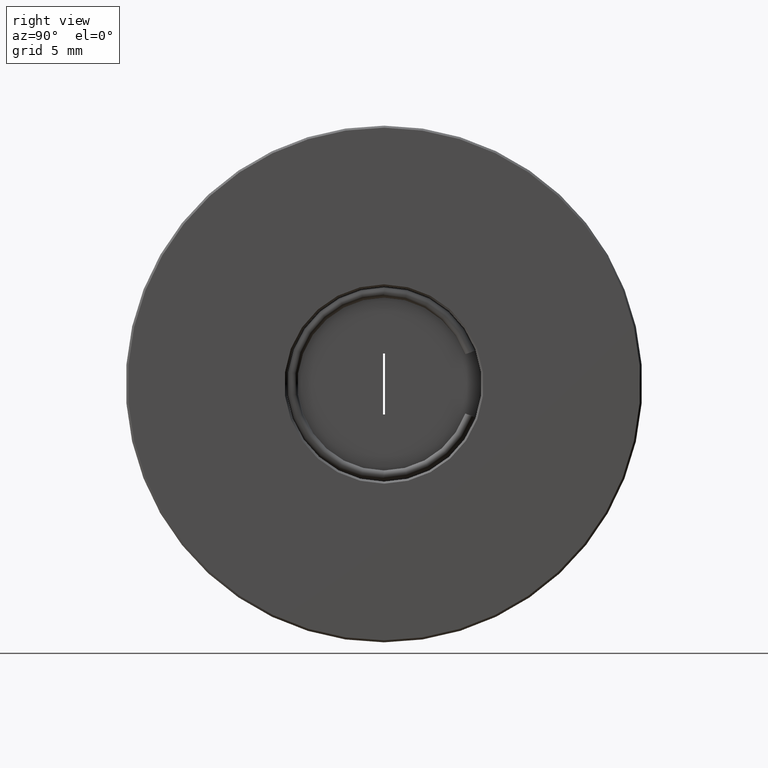
[diagram: clean part render]
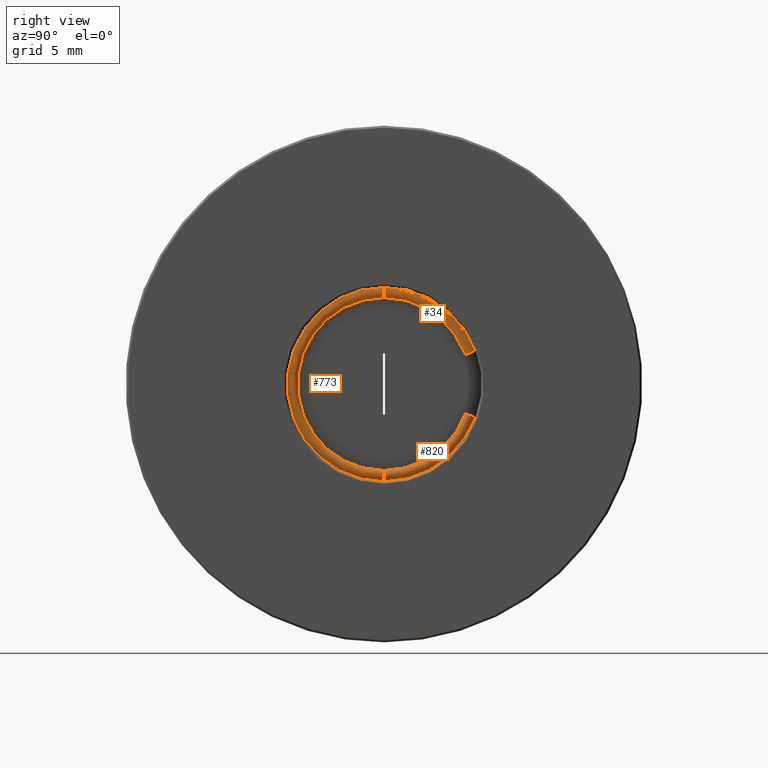
[diagram: same view with one multi-face feature highlighted, each face labeled with its STEP entity id]
A machine part, right view. The highlighted faces form ONE feature: a constant-radius fillet chain: 3 tangent blend faces with common blend radius 0.25 mm. The faces share edges in the B-rep.
Their STEP definitions:
[1] entity #820 (Torus):
#3 = DIRECTION ( 'NONE',  ( 1.000000000000000000, -3.053113317719177725E-15, -1.221245326846538123E-15 ) ) ;
#18 = CARTESIAN_POINT ( 'NONE',  ( -4.034863851253000178, 1.436758840805285820, 21.14999999999999858 ) ) ;
#26 = CIRCLE ( 'NONE', #391, 0.2500000000000002220 ) ;
#30 = DIRECTION ( 'NONE',  ( 1.000000000000000000, -3.469446951953611033E-15, 0.000000000000000000 ) ) ;
#33 = CARTESIAN_POINT ( 'NONE',  ( -4.034863851252994849, 1.436758840788832314, 20.89999999999999858 ) ) ;
#72 = FACE_OUTER_BOUND ( 'NONE', #881, .T. ) ;
#75 = EDGE_CURVE ( 'NONE', #121, #212, #26, .T. ) ;
#107 = DIRECTION ( 'NONE',  ( -3.053113317638805026E-15, -1.000000000000000000, 6.581508406600454517E-11 ) ) ;
#111 = CARTESIAN_POINT ( 'NONE',  ( -4.034863851253006395, 1.436758840772378365, 20.64999999999999858 ) ) ;
#121 = VERTEX_POINT ( 'NONE', #111 ) ;
#134 = AXIS2_PLACEMENT_3D ( 'NONE', #322, #686, #177 ) ;
#177 = DIRECTION ( 'NONE',  ( 3.104242009642707308E-15, 1.000000000000000000, -6.581577388350236595E-11 ) ) ;
#184 = CARTESIAN_POINT ( 'NONE',  ( -4.034863851253018829, 5.665375634520317227, 23.86090935475618835 ) ) ;
#212 = VERTEX_POINT ( 'NONE', #18 ) ;
#220 = VERTEX_POINT ( 'NONE', #299 ) ;
#228 = ORIENTED_EDGE ( 'NONE', *, *, #705, .F. ) ;
#232 = VERTEX_POINT ( 'NONE', #894 ) ;
#266 = DIRECTION ( 'NONE',  ( 3.469446951953611033E-15, -0.9396926207634005435, 0.3420201433875083574 ) ) ;
#299 = CARTESIAN_POINT ( 'NONE',  ( -4.034863851252988631, 5.900298789711156289, 23.77540431890931671 ) ) ;
#322 = CARTESIAN_POINT ( 'NONE',  ( -4.034863851253000178, 1.436758841085000071, 25.39999999999999858 ) ) ;
#361 = ORIENTED_EDGE ( 'NONE', *, *, #926, .T. ) ;
#391 = AXIS2_PLACEMENT_3D ( 'NONE', #33, #107, #30 ) ;
#394 = CIRCLE ( 'NONE', #134, 4.750000000000000000 ) ;
#411 = DIRECTION ( 'NONE',  ( 1.000000000000000000, -3.053113317719177725E-15, -1.221245326846538123E-15 ) ) ;
#413 = CIRCLE ( 'NONE', #536, 0.2500000000000002220 ) ;
#531 = AXIS2_PLACEMENT_3D ( 'NONE', #620, #411, #775 ) ;
#536 = AXIS2_PLACEMENT_3D ( 'NONE', #184, #935, #266 ) ;
#577 = EDGE_CURVE ( 'NONE', #220, #232, #413, .T. ) ;
#586 = ORIENTED_EDGE ( 'NONE', *, *, #75, .F. ) ;
#587 = DIRECTION ( 'NONE',  ( -1.221245327047478942E-15, -6.581508912423552347E-11, -1.000000000000000000 ) ) ;
#620 = CARTESIAN_POINT ( 'NONE',  ( -4.034863851253000178, 1.436758841085000071, 25.39999999999999858 ) ) ;
#626 = TOROIDAL_SURFACE ( 'NONE', #875, 4.500000000000000000, 0.2500000000000000000 ) ;
#655 = CARTESIAN_POINT ( 'NONE',  ( -4.034863851253000178, 1.436758841085000071, 25.39999999999999858 ) ) ;
#686 = DIRECTION ( 'NONE',  ( 1.000000000000000000, -3.053113317719177725E-15, -1.221245326846538123E-15 ) ) ;
#696 = CIRCLE ( 'NONE', #531, 4.250000000000000000 ) ;
#705 = EDGE_CURVE ( 'NONE', #212, #232, #696, .T. ) ;
#775 = DIRECTION ( 'NONE',  ( 3.061276722312012589E-15, 1.000000000000000000, -6.581581684878969820E-11 ) ) ;
#778 = ORIENTED_EDGE ( 'NONE', *, *, #577, .T. ) ;
#820 = ADVANCED_FACE ( 'NONE', ( #72 ), #626, .T. ) ;
#875 = AXIS2_PLACEMENT_3D ( 'NONE', #655, #3, #587 ) ;
#881 = EDGE_LOOP ( 'NONE', ( #586, #361, #778, #228 ) ) ;
#894 = CARTESIAN_POINT ( 'NONE',  ( -4.034863851252989519, 5.430452479329460402, 23.94641439060306709 ) ) ;
#926 = EDGE_CURVE ( 'NONE', #121, #220, #394, .T. ) ;
#935 = DIRECTION ( 'NONE',  ( 2.191821476484100505E-15, -0.3420201433875058039, -0.9396926207634015427 ) ) ;
[2] entity #773 (Torus):
#17 = AXIS2_PLACEMENT_3D ( 'NONE', #207, #730, #649 ) ;
#18 = CARTESIAN_POINT ( 'NONE',  ( -4.034863851253000178, 1.436758840805285820, 21.14999999999999858 ) ) ;
#25 = CARTESIAN_POINT ( 'NONE',  ( -4.034863851253000178, 1.436758841085000071, 25.39999999999999858 ) ) ;
#26 = CIRCLE ( 'NONE', #391, 0.2500000000000002220 ) ;
#30 = DIRECTION ( 'NONE',  ( 1.000000000000000000, -3.469446951953611033E-15, 0.000000000000000000 ) ) ;
#33 = CARTESIAN_POINT ( 'NONE',  ( -4.034863851252994849, 1.436758840788832314, 20.89999999999999858 ) ) ;
#40 = AXIS2_PLACEMENT_3D ( 'NONE', #25, #685, #763 ) ;
#56 = VERTEX_POINT ( 'NONE', #547 ) ;
#75 = EDGE_CURVE ( 'NONE', #121, #212, #26, .T. ) ;
#99 = EDGE_CURVE ( 'NONE', #56, #121, #190, .T. ) ;
#107 = DIRECTION ( 'NONE',  ( -3.053113317638805026E-15, -1.000000000000000000, 6.581508406600454517E-11 ) ) ;
#111 = CARTESIAN_POINT ( 'NONE',  ( -4.034863851253006395, 1.436758840772378365, 20.64999999999999858 ) ) ;
#121 = VERTEX_POINT ( 'NONE', #111 ) ;
#136 = ORIENTED_EDGE ( 'NONE', *, *, #99, .T. ) ;
#148 = FACE_OUTER_BOUND ( 'NONE', #444, .T. ) ;
#188 = DIRECTION ( 'NONE',  ( 3.061276722312012589E-15, 1.000000000000000000, -6.581581684878969820E-11 ) ) ;
#190 = CIRCLE ( 'NONE', #40, 4.750000000000000000 ) ;
#195 = VERTEX_POINT ( 'NONE', #452 ) ;
#200 = ORIENTED_EDGE ( 'NONE', *, *, #438, .F. ) ;
#207 = CARTESIAN_POINT ( 'NONE',  ( -4.034863851253000178, 1.436758841085000071, 25.39999999999999858 ) ) ;
#212 = VERTEX_POINT ( 'NONE', #18 ) ;
#337 = DIRECTION ( 'NONE',  ( 3.053113317638805026E-15, 1.000000000000000000, -6.581520653068446578E-11 ) ) ;
#379 = CIRCLE ( 'NONE', #945, 4.250000000000000000 ) ;
#391 = AXIS2_PLACEMENT_3D ( 'NONE', #33, #107, #30 ) ;
#438 = EDGE_CURVE ( 'NONE', #56, #195, #922, .T. ) ;
#444 = EDGE_LOOP ( 'NONE', ( #200, #136, #713, #638 ) ) ;
#452 = CARTESIAN_POINT ( 'NONE',  ( -4.034863851252997513, 1.436758841364714767, 29.64999999999999858 ) ) ;
#483 = DIRECTION ( 'NONE',  ( 1.000000000000000000, -3.053113317719177725E-15, -1.221245326846538123E-15 ) ) ;
#547 = CARTESIAN_POINT ( 'NONE',  ( -4.034863851252993960, 1.436758841397622444, 30.14999999999999858 ) ) ;
#608 = EDGE_CURVE ( 'NONE', #195, #212, #379, .T. ) ;
#629 = AXIS2_PLACEMENT_3D ( 'NONE', #699, #337, #632 ) ;
#632 = DIRECTION ( 'NONE',  ( -1.000000000000000000, 3.469446951953611033E-15, 0.000000000000000000 ) ) ;
#638 = ORIENTED_EDGE ( 'NONE', *, *, #608, .F. ) ;
#649 = DIRECTION ( 'NONE',  ( -1.221245327047478942E-15, -6.581508912423552347E-11, -1.000000000000000000 ) ) ;
#671 = TOROIDAL_SURFACE ( 'NONE', #17, 4.500000000000000000, 0.2500000000000000000 ) ;
#685 = DIRECTION ( 'NONE',  ( 1.000000000000000000, -3.053113317719177725E-15, -1.221245326846538123E-15 ) ) ;
#699 = CARTESIAN_POINT ( 'NONE',  ( -4.034863851253005507, 1.436758841381168494, 29.89999999999999858 ) ) ;
#713 = ORIENTED_EDGE ( 'NONE', *, *, #75, .T. ) ;
#730 = DIRECTION ( 'NONE',  ( 1.000000000000000000, -3.053113317719177725E-15, -1.221245326846538123E-15 ) ) ;
#763 = DIRECTION ( 'NONE',  ( 3.104242009642707308E-15, 1.000000000000000000, -6.581577388350236595E-11 ) ) ;
#765 = CARTESIAN_POINT ( 'NONE',  ( -4.034863851253000178, 1.436758841085000071, 25.39999999999999858 ) ) ;
#773 = ADVANCED_FACE ( 'NONE', ( #148 ), #671, .T. ) ;
#922 = CIRCLE ( 'NONE', #629, 0.2500000000000002220 ) ;
#945 = AXIS2_PLACEMENT_3D ( 'NONE', #765, #483, #188 ) ;
[3] entity #34 (Torus):
#7 = ORIENTED_EDGE ( 'NONE', *, *, #367, .F. ) ;
#34 = ADVANCED_FACE ( 'NONE', ( #175 ), #666, .T. ) ;
#50 = AXIS2_PLACEMENT_3D ( 'NONE', #401, #912, #762 ) ;
#56 = VERTEX_POINT ( 'NONE', #547 ) ;
#93 = AXIS2_PLACEMENT_3D ( 'NONE', #441, #512, #286 ) ;
#115 = AXIS2_PLACEMENT_3D ( 'NONE', #470, #464, #393 ) ;
#175 = FACE_OUTER_BOUND ( 'NONE', #937, .T. ) ;
#195 = VERTEX_POINT ( 'NONE', #452 ) ;
#221 = CARTESIAN_POINT ( 'NONE',  ( -4.034863851252984190, 5.900298789925018994, 27.02459568050306515 ) ) ;
#248 = AXIS2_PLACEMENT_3D ( 'NONE', #732, #296, #898 ) ;
#249 = EDGE_CURVE ( 'NONE', #284, #56, #837, .T. ) ;
#284 = VERTEX_POINT ( 'NONE', #221 ) ;
#286 = DIRECTION ( 'NONE',  ( 3.061276722312012589E-15, 1.000000000000000000, -6.581581684878969820E-11 ) ) ;
#296 = DIRECTION ( 'NONE',  ( 1.000000000000000000, -3.053113317719177725E-15, -1.221245326846538123E-15 ) ) ;
#307 = VERTEX_POINT ( 'NONE', #484 ) ;
#312 = CIRCLE ( 'NONE', #50, 0.2500000000000000000 ) ;
#337 = DIRECTION ( 'NONE',  ( 3.053113317638805026E-15, 1.000000000000000000, -6.581520653068446578E-11 ) ) ;
#367 = EDGE_CURVE ( 'NONE', #284, #307, #312, .T. ) ;
#393 = DIRECTION ( 'NONE',  ( -1.221245327047478942E-15, -6.581508912423552347E-11, -1.000000000000000000 ) ) ;
#401 = CARTESIAN_POINT ( 'NONE',  ( -4.034863851253018829, 5.665375634722910725, 26.93909064468711634 ) ) ;
#438 = EDGE_CURVE ( 'NONE', #56, #195, #922, .T. ) ;
#441 = CARTESIAN_POINT ( 'NONE',  ( -4.034863851253000178, 1.436758841085000071, 25.39999999999999858 ) ) ;
#452 = CARTESIAN_POINT ( 'NONE',  ( -4.034863851252997513, 1.436758841364714767, 29.64999999999999858 ) ) ;
#464 = DIRECTION ( 'NONE',  ( 1.000000000000000000, -3.053113317719177725E-15, -1.221245326846538123E-15 ) ) ;
#470 = CARTESIAN_POINT ( 'NONE',  ( -4.034863851253000178, 1.436758841085000071, 25.39999999999999858 ) ) ;
#484 = CARTESIAN_POINT ( 'NONE',  ( -4.034863851252985967, 5.430452479520808673, 26.85358560887116042 ) ) ;
#495 = ORIENTED_EDGE ( 'NONE', *, *, #249, .T. ) ;
#505 = CIRCLE ( 'NONE', #93, 4.250000000000000000 ) ;
#512 = DIRECTION ( 'NONE',  ( 1.000000000000000000, -3.053113317719177725E-15, -1.221245326846538123E-15 ) ) ;
#547 = CARTESIAN_POINT ( 'NONE',  ( -4.034863851252993960, 1.436758841397622444, 30.14999999999999858 ) ) ;
#629 = AXIS2_PLACEMENT_3D ( 'NONE', #699, #337, #632 ) ;
#632 = DIRECTION ( 'NONE',  ( -1.000000000000000000, 3.469446951953611033E-15, 0.000000000000000000 ) ) ;
#666 = TOROIDAL_SURFACE ( 'NONE', #115, 4.500000000000000000, 0.2500000000000000000 ) ;
#672 = ORIENTED_EDGE ( 'NONE', *, *, #783, .F. ) ;
#699 = CARTESIAN_POINT ( 'NONE',  ( -4.034863851253005507, 1.436758841381168494, 29.89999999999999858 ) ) ;
#725 = ORIENTED_EDGE ( 'NONE', *, *, #438, .T. ) ;
#732 = CARTESIAN_POINT ( 'NONE',  ( -4.034863851253000178, 1.436758841085000071, 25.39999999999999858 ) ) ;
#762 = DIRECTION ( 'NONE',  ( 3.469446951953614189E-15, -0.9396926208084209753, -0.3420201432638159122 ) ) ;
#783 = EDGE_CURVE ( 'NONE', #307, #195, #505, .T. ) ;
#837 = CIRCLE ( 'NONE', #248, 4.750000000000000000 ) ;
#898 = DIRECTION ( 'NONE',  ( 3.104242009642707308E-15, 1.000000000000000000, -6.581577388350236595E-11 ) ) ;
#912 = DIRECTION ( 'NONE',  ( 1.033689675075031444E-16, 0.3420201432638105277, -0.9396926208084229737 ) ) ;
#922 = CIRCLE ( 'NONE', #629, 0.2500000000000002220 ) ;
#937 = EDGE_LOOP ( 'NONE', ( #7, #495, #725, #672 ) ) ;